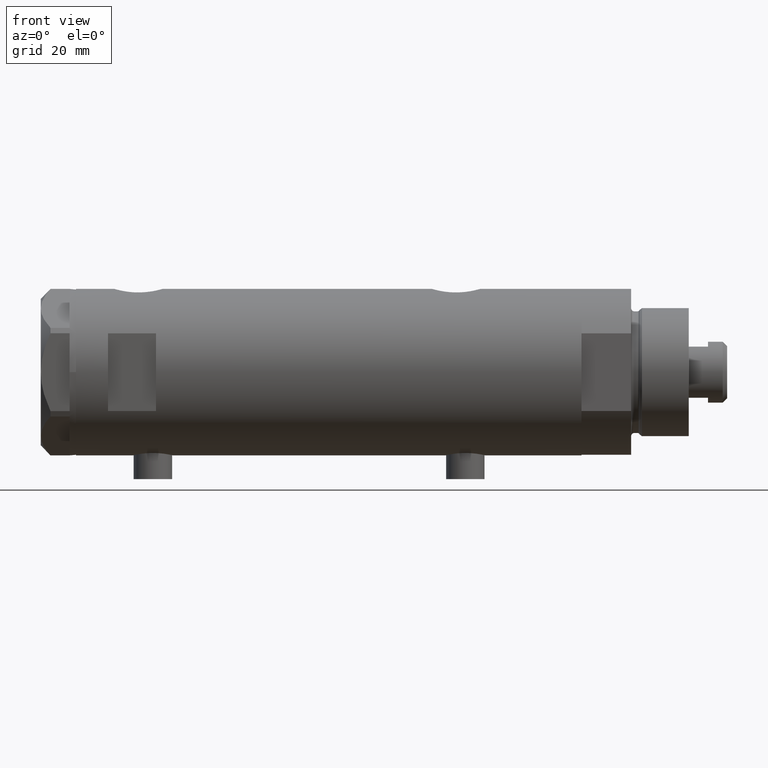
[diagram: clean part render]
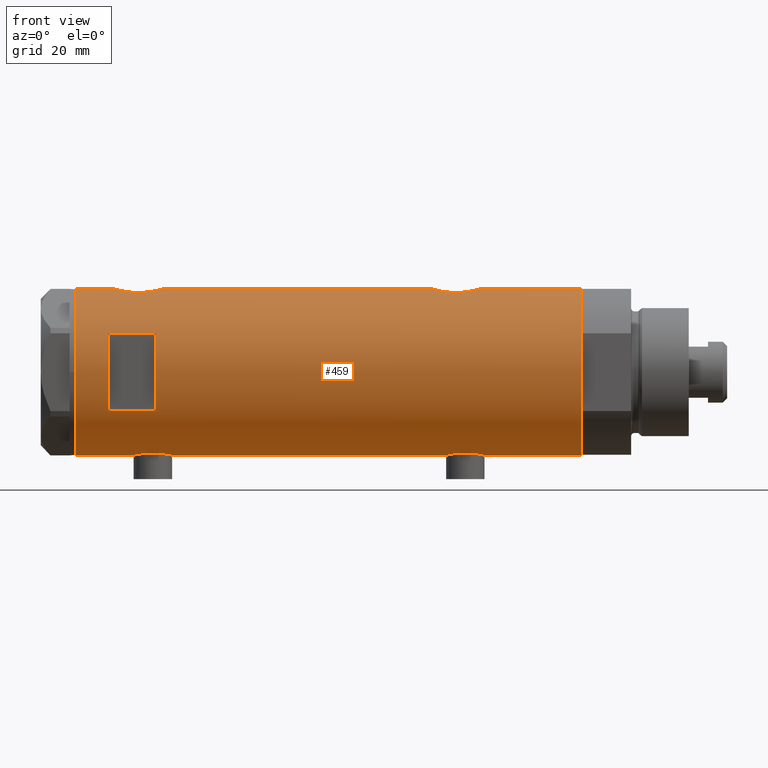
[diagram: same view with one face highlighted and labeled with its STEP entity id]
A machine part, front view. The second image highlights one B-rep face of the part: STEP entity #459.
In plain terms, the highlighted cylindrical surface (partial cylindrical patch) has radius 26 mm, axis along (-1, -0, 0).
Its self-contained STEP definition (entity closure, byte-faithful):
#2 = EDGE_CURVE ( 'NONE', #2162, #4153, #1771, .T. ) ;
#14 = CARTESIAN_POINT ( 'NONE',  ( -25.95206678899177888, -1.628763264760263230, -36.60199186669786542 ) ) ;
#28 = CARTESIAN_POINT ( 'NONE',  ( -12.12435565298214080, -23.00000000000000355, 68.95000000000003126 ) ) ;
#31 = ORIENTED_EDGE ( 'NONE', *, *, #4193, .T. ) ;
#109 = CARTESIAN_POINT ( 'NONE',  ( 25.27534302296961854, -6.097250460344744383, 63.82409613097077283 ) ) ;
#131 = CARTESIAN_POINT ( 'NONE',  ( 25.27534302296961854, -6.097250460344746159, -35.37590386902926554 ) ) ;
#152 = CARTESIAN_POINT ( 'NONE',  ( 24.96970063328116751, -7.247045583599690310, 57.50280785145197626 ) ) ;
#163 = VERTEX_POINT ( 'NONE', #2938 ) ;
#174 = CARTESIAN_POINT ( 'NONE',  ( 25.41756773306326522, -5.475260495868973898, -34.61859126343051685 ) ) ;
#185 = ORIENTED_EDGE ( 'NONE', *, *, #2, .T. ) ;
#250 = DIRECTION ( 'NONE',  ( 1.000000000000000000, 0.000000000000000000, 0.000000000000000000 ) ) ;
#273 = VECTOR ( 'NONE', #2916, 1000.000000000000000 ) ;
#283 = DIRECTION ( 'NONE',  ( 1.000000000000000000, 0.000000000000000000, 0.000000000000000000 ) ) ;
#288 = CARTESIAN_POINT ( 'NONE',  ( -25.31551596256916525, -5.928819821281963165, -44.67011491904084153 ) ) ;
#296 = AXIS2_PLACEMENT_3D ( 'NONE', #1550, #1964, #4585 ) ;
#328 = EDGE_CURVE ( 'NONE', #2162, #3417, #1556, .T. ) ;
#336 = CARTESIAN_POINT ( 'NONE',  ( -25.38662204309617465, -5.616507264474316585, -39.87800622280675356 ) ) ;
#342 = CARTESIAN_POINT ( 'NONE',  ( 25.88994451797511331, -2.432613607265599498, -46.86140968713201005 ) ) ;
#361 = CARTESIAN_POINT ( 'NONE',  ( -25.81232680456767170, -3.137210741985124507, -37.22886342778421920 ) ) ;
#368 = VECTOR ( 'NONE', #840, 1000.000000000000000 ) ;
#374 = CIRCLE ( 'NONE', #3212, 26.00000000000000355 ) ;
#390 = CARTESIAN_POINT ( 'NONE',  ( -25.99999999999998934, -0.4144764235405737907, -36.39999999999999147 ) ) ;
#415 = CARTESIAN_POINT ( 'NONE',  ( -25.24765475072630139, -6.209883762780014749, -41.83321815644903552 ) ) ;
#426 = CARTESIAN_POINT ( 'NONE',  ( 25.98599366666249111, -0.9828433289544116214, 66.90188401723474954 ) ) ;
#449 = CARTESIAN_POINT ( 'NONE',  ( 25.17510548814053450, -6.503212750695461786, 63.21761787815348299 ) ) ;
#450 = CARTESIAN_POINT ( 'NONE',  ( -25.52190669608696183, -4.968444991210422934, 51.13658907807515419 ) ) ;
#459 = ADVANCED_FACE ( 'NONE', ( #577, #2790 ), #3590, .T. ) ;
#480 = CARTESIAN_POINT ( 'NONE',  ( 12.12435565298214080, -23.00000000000000355, 53.95000000000001705 ) ) ;
#520 = CARTESIAN_POINT ( 'NONE',  ( 26.00000000000000355, 0.000000000000000000, 78.95000000000000284 ) ) ;
#549 = CARTESIAN_POINT ( 'NONE',  ( 25.01107424167500781, -7.102941973849612900, 57.02937151337422250 ) ) ;
#577 = FACE_OUTER_BOUND ( 'NONE', #1242, .T. ) ;
#579 = CARTESIAN_POINT ( 'NONE',  ( -25.74330903162726614, -3.648508829439214285, 60.02867714715799963 ) ) ;
#629 = DIRECTION ( 'NONE',  ( 0.000000000000000000, 0.000000000000000000, 1.000000000000000000 ) ) ;
#632 = CARTESIAN_POINT ( 'NONE',  ( -25.85385060263650203, -2.778671585188186910, 60.56314451304238133 ) ) ;
#645 = CARTESIAN_POINT ( 'NONE',  ( -25.57167894663061958, -4.701762988462087733, 59.07280450192418186 ) ) ;
#680 = ORIENTED_EDGE ( 'NONE', *, *, #2490, .F. ) ;
#698 = VECTOR ( 'NONE', #4334, 1000.000000000000000 ) ;
#741 = DIRECTION ( 'NONE',  ( 1.000000000000000000, 0.000000000000000000, 0.000000000000000000 ) ) ;
#757 = CARTESIAN_POINT ( 'NONE',  ( -25.71926338401909362, -3.813768894920912977, -37.69427860166183564 ) ) ;
#809 = CARTESIAN_POINT ( 'NONE',  ( -25.99036913299956453, -0.8159609457881494832, -48.86031143031891588 ) ) ;
#812 = CARTESIAN_POINT ( 'NONE',  ( 25.38109653984944103, -5.641393955635662039, 64.39819092448752258 ) ) ;
#831 = CARTESIAN_POINT ( 'NONE',  ( -25.78943824387523165, -3.306687742228911375, -47.95754138783466658 ) ) ;
#839 = CARTESIAN_POINT ( 'NONE',  ( 24.91324908721446718, -7.438459228814661373, 60.44017499374191260 ) ) ;
#840 = DIRECTION ( 'NONE',  ( 0.000000000000000000, 0.000000000000000000, 1.000000000000000000 ) ) ;
#844 = CARTESIAN_POINT ( 'NONE',  ( -26.00000000000000000, -0.4086738135806028960, 48.70000000000000995 ) ) ;
#854 = LINE ( 'NONE', #2355, #4370 ) ;
#860 = CARTESIAN_POINT ( 'NONE',  ( 26.00000000000000355, 3.343657407582877388E-16, -47.25000000000000000 ) ) ;
#864 = CARTESIAN_POINT ( 'NONE',  ( 25.31004928890824957, -5.952041021437452173, -35.18019400116495632 ) ) ;
#878 = CARTESIAN_POINT ( 'NONE',  ( 25.38125492692910967, -5.649348210287291394, 54.49305665653605502 ) ) ;
#881 = CARTESIAN_POINT ( 'NONE',  ( 25.00829008792691255, -7.115081037226466343, -37.32698996259182422 ) ) ;
#904 = CARTESIAN_POINT ( 'NONE',  ( -25.24022290516698419, -6.239518219915426656, 54.53402784061568553 ) ) ;
#909 = CARTESIAN_POINT ( 'NONE',  ( 24.89475831528845262, -7.500067228253130658, -40.24337428253534910 ) ) ;
#934 = VERTEX_POINT ( 'NONE', #4416 ) ;
#958 = CARTESIAN_POINT ( 'NONE',  ( -25.24765475072630139, -6.209883762780005867, 55.76678184355100854 ) ) ;
#1021 = EDGE_CURVE ( 'NONE', #934, #1672, #4027, .T. ) ;
#1054 = ORIENTED_EDGE ( 'NONE', *, *, #1987, .F. ) ;
#1101 = ORIENTED_EDGE ( 'NONE', *, *, #4035, .F. ) ;
#1125 = CARTESIAN_POINT ( 'NONE',  ( -25.72076778631231164, -3.815670258243487378, 49.98312189468122568 ) ) ;
#1132 = CARTESIAN_POINT ( 'NONE',  ( -25.64593536028936072, -4.278686337618966995, -38.08968397039122067 ) ) ;
#1162 = CARTESIAN_POINT ( 'NONE',  ( 25.38125492692910612, -5.649348210287294059, -44.70694334346394072 ) ) ;
#1185 = EDGE_CURVE ( 'NONE', #3476, #934, #4519, .T. ) ;
#1187 = CARTESIAN_POINT ( 'NONE',  ( -26.00000000000000355, 3.184077527325983904E-15, -48.90000000000001279 ) ) ;
#1190 = CARTESIAN_POINT ( 'NONE',  ( 25.59665538672496865, -4.580438224580679396, 65.40889127712388529 ) ) ;
#1206 = LINE ( 'NONE', #3147, #3916 ) ;
#1233 = CARTESIAN_POINT ( 'NONE',  ( 24.89475831528844907, -7.500067228253130658, 58.95662571746464664 ) ) ;
#1242 = EDGE_LOOP ( 'NONE', ( #3670, #2153, #4104, #1623, #31, #1818, #185, #680, #3174, #2048, #4217, #1925 ) ) ;
#1252 = CARTESIAN_POINT ( 'NONE',  ( 25.59500516383205948, -4.575229401795795958, 53.50212244934583339 ) ) ;
#1253 = CARTESIAN_POINT ( 'NONE',  ( -25.92425332714050867, -2.018894156999440526, 49.02103879324670288 ) ) ;
#1255 = CARTESIAN_POINT ( 'NONE',  ( 25.38109653984943748, -5.641393955635659374, -34.80180907551250158 ) ) ;
#1270 = CARTESIAN_POINT ( 'NONE',  ( -25.52190669608696183, -4.968444991210430040, -46.46341092192485434 ) ) ;
#1278 = CARTESIAN_POINT ( 'NONE',  ( 24.89854802586676286, -7.487520416261737921, -39.25184316422095065 ) ) ;
#1283 = CARTESIAN_POINT ( 'NONE',  ( 26.00000000000000355, -3.975028449552882818E-20, 66.95000000000000284 ) ) ;
#1307 = CARTESIAN_POINT ( 'NONE',  ( -25.59645788645698872, -4.565358797148513226, 59.22330529203479443 ) ) ;
#1316 = VERTEX_POINT ( 'NONE', #2191 ) ;
#1334 = CARTESIAN_POINT ( 'NONE',  ( 0.000000000000000000, 0.000000000000000000, -78.95000000000000284 ) ) ;
#1383 = CARTESIAN_POINT ( 'NONE',  ( -25.92364458890658696, -2.026637113504536458, 60.87630990691475574 ) ) ;
#1442 = CARTESIAN_POINT ( 'NONE',  ( -12.12435565298214080, -23.00000000000000355, 53.95000000000001705 ) ) ;
#1470 = CARTESIAN_POINT ( 'NONE',  ( -25.92364458890659762, -2.026637113504532017, -36.72369009308525278 ) ) ;
#1477 = CARTESIAN_POINT ( 'NONE',  ( 25.62983961939740141, -4.376509667782454649, -45.84558499042960733 ) ) ;
#1499 = CARTESIAN_POINT ( 'NONE',  ( -25.87202607293666645, -2.583404329177992675, 49.25526333145489133 ) ) ;
#1523 = CARTESIAN_POINT ( 'NONE',  ( 25.72912156655465665, -3.765948295762491238, -46.25442975399223400 ) ) ;
#1525 = CARTESIAN_POINT ( 'NONE',  ( -26.00000000000000355, 3.184081677783118585E-15, 78.95000000000000284 ) ) ;
#1548 = CARTESIAN_POINT ( 'NONE',  ( 25.30930190055640239, -5.959775463244125326, -44.32974043478029103 ) ) ;
#1550 = CARTESIAN_POINT ( 'NONE',  ( 0.000000000000000000, 0.000000000000000000, 53.95000000000012363 ) ) ;
#1551 = CARTESIAN_POINT ( 'NONE',  ( 25.93085545515512536, -1.956676574435512794, 66.70727036830264467 ) ) ;
#1556 = B_SPLINE_CURVE_WITH_KNOTS ( 'NONE', 3,
 ( #3805, #4206, #426, #1551, #1914, #3066, #4564, #1190, #2687, #4185, #812, #2310, #109, #449, #1587, #1942, #3103, #1570, #839, #2338, #4611, #1233, #2736, #4231, #152, #549, #3505, #2415, #1659, #1640, #878, #2811, #2760, #1252, #4661, #1615, #3155, #3180, #4308, #4255, #4683, #3922 ),
 .UNSPECIFIED., .F., .F.,
 ( 4, 2, 2, 2, 2, 2, 2, 2, 2, 2, 2, 2, 2, 2, 2, 2, 2, 2, 2, 2, 4 ),
 ( 0.02357432247332888128, 0.02504731828495720264, 0.02652031409658552746, 0.02799330990821384882, 0.02946630571984217017, 0.03020280362565634646, 0.03093930153147052275, 0.03241229734309883370, 0.03388529315472715159, 0.03462179106054130706, 0.03535828896635546947, 0.03683128477798380818, 0.03756778268379798447, 0.03830428058961215382, 0.03977727640124052721, 0.04125027221286890755, 0.04198677011868309772, 0.04272326802449730176, 0.04419626383612570292, 0.04566925964775411101, 0.04714225545938251910 ),
 .UNSPECIFIED. ) ;
#1559 = CIRCLE ( 'NONE', #4225, 26.00000000000000355 ) ;
#1570 = CARTESIAN_POINT ( 'NONE',  ( 24.92415241886516242, -7.401968919186685092, 60.68323537444815940 ) ) ;
#1587 = CARTESIAN_POINT ( 'NONE',  ( 25.11342038069227200, -6.734617143597204425, 62.78770695790495893 ) ) ;
#1591 = CARTESIAN_POINT ( 'NONE',  ( 24.91324908721445652, -7.438459228814655155, -38.75982500625809024 ) ) ;
#1599 = VECTOR ( 'NONE', #2093, 1000.000000000000000 ) ;
#1615 = CARTESIAN_POINT ( 'NONE',  ( 25.72912156655465310, -3.765948295762495235, 52.94557024600777595 ) ) ;
#1616 = ORIENTED_EDGE ( 'NONE', *, *, #4063, .F. ) ;
#1623 = ORIENTED_EDGE ( 'NONE', *, *, #3345, .F. ) ;
#1638 = CARTESIAN_POINT ( 'NONE',  ( -26.00000000000000355, 3.184077527313362130E-15, 48.70000000000000995 ) ) ;
#1640 = CARTESIAN_POINT ( 'NONE',  ( 25.30930190055639883, -5.959775463244125326, 54.87025956521971892 ) ) ;
#1658 = LINE ( 'NONE', #4681, #698 ) ;
#1659 = CARTESIAN_POINT ( 'NONE',  ( 25.17393786935995692, -6.507882790539421869, 55.68962666655968974 ) ) ;
#1664 = CARTESIAN_POINT ( 'NONE',  ( 0.000000000000000000, 0.000000000000000000, 78.95000000000000284 ) ) ;
#1672 = VERTEX_POINT ( 'NONE', #2557 ) ;
#1683 = CARTESIAN_POINT ( 'NONE',  ( -25.28680988956730857, -6.048472998962280300, 53.32372305811759361 ) ) ;
#1708 = CARTESIAN_POINT ( 'NONE',  ( -25.25769689814630325, -6.168504065326071206, 53.92353364703255636 ) ) ;
#1721 = DIRECTION ( 'NONE',  ( 0.000000000000000000, 0.000000000000000000, 1.000000000000000000 ) ) ;
#1733 = CARTESIAN_POINT ( 'NONE',  ( -25.95206678899177888, -1.628763264760260565, 60.99800813330215732 ) ) ;
#1737 = LINE ( 'NONE', #3281, #4543 ) ;
#1754 = CARTESIAN_POINT ( 'NONE',  ( -25.67063510297210271, -4.128418051804841227, 59.64682575271267240 ) ) ;
#1758 = EDGE_CURVE ( 'NONE', #3444, #1801, #3672, .T. ) ;
#1771 = LINE ( 'NONE', #3973, #1599 ) ;
#1801 = VERTEX_POINT ( 'NONE', #2119 ) ;
#1818 = ORIENTED_EDGE ( 'NONE', *, *, #328, .F. ) ;
#1821 = DIRECTION ( 'NONE',  ( 0.000000000000000000, 0.000000000000000000, 1.000000000000000000 ) ) ;
#1824 = CARTESIAN_POINT ( 'NONE',  ( -25.49846181844014126, -5.083495422175134060, -39.00822496617402635 ) ) ;
#1884 = CARTESIAN_POINT ( 'NONE',  ( -26.00000000000000355, -6.335391871414786776E-16, -36.39999999999999858 ) ) ;
#1905 = CARTESIAN_POINT ( 'NONE',  ( -25.42883439573801141, -5.424786127492342125, -39.51918542739093709 ) ) ;
#1914 = CARTESIAN_POINT ( 'NONE',  ( 25.89059789403177092, -2.425642437452263156, 66.56377447242300605 ) ) ;
#1925 = ORIENTED_EDGE ( 'NONE', *, *, #1021, .F. ) ;
#1938 = CARTESIAN_POINT ( 'NONE',  ( 25.52449676677459678, -4.953491517965876945, -45.38674491334075611 ) ) ;
#1942 = CARTESIAN_POINT ( 'NONE',  ( 25.00829008792692321, -7.115081037226465455, 61.87301003740819993 ) ) ;
#1964 = DIRECTION ( 'NONE',  ( -0.000000000000000000, -4.625929269271486900E-15, 1.000000000000000000 ) ) ;
#1968 = CARTESIAN_POINT ( 'NONE',  ( 25.72873412774685775, -3.768477344985552424, -33.24712539855536164 ) ) ;
#1976 = CARTESIAN_POINT ( 'NONE',  ( -25.85288666140180780, -2.767917424206675747, 49.34257790010328648 ) ) ;
#1981 = CARTESIAN_POINT ( 'NONE',  ( -25.95218276861526618, -1.627663810194429406, 48.90149019612395165 ) ) ;
#1983 = CARTESIAN_POINT ( 'NONE',  ( 24.96672817551788270, -7.257586026187393458, -37.79615800278702409 ) ) ;
#1987 = EDGE_CURVE ( 'NONE', #3310, #4152, #3332, .T. ) ;
#2009 = CARTESIAN_POINT ( 'NONE',  ( 25.93085545515512891, -1.956676574435509686, -32.49272963169732265 ) ) ;
#2026 = DIRECTION ( 'NONE',  ( 0.000000000000000000, 0.000000000000000000, 1.000000000000000000 ) ) ;
#2048 = ORIENTED_EDGE ( 'NONE', *, *, #1758, .F. ) ;
#2058 = CARTESIAN_POINT ( 'NONE',  ( 25.98599366666249466, -0.9828433289544072915, -32.29811598276526752 ) ) ;
#2066 = CARTESIAN_POINT ( 'NONE',  ( -25.72076778631231164, -3.815670258243489599, -47.61687810531881127 ) ) ;
#2093 = DIRECTION ( 'NONE',  ( 0.000000000000000000, 0.000000000000000000, 1.000000000000000000 ) ) ;
#2119 = CARTESIAN_POINT ( 'NONE',  ( -26.00000000000000355, -2.813058302341337106E-16, 61.20000000000000284 ) ) ;
#2122 = EDGE_CURVE ( 'NONE', #3825, #4752, #854, .T. ) ;
#2153 = ORIENTED_EDGE ( 'NONE', *, *, #4786, .T. ) ;
#2162 = VERTEX_POINT ( 'NONE', #1283 ) ;
#2191 = CARTESIAN_POINT ( 'NONE',  ( 26.00000000000000355, -3.975025925197986111E-20, -32.25000000000000000 ) ) ;
#2258 = CARTESIAN_POINT ( 'NONE',  ( -25.74330903162725903, -3.648508829439220946, -37.57132285284201600 ) ) ;
#2265 = CARTESIAN_POINT ( 'NONE',  ( -25.85288666140181491, -2.767917424206677079, -48.25742209989675047 ) ) ;
#2282 = CARTESIAN_POINT ( 'NONE',  ( -25.28680988956730147, -6.048472998962283853, -44.27627694188245755 ) ) ;
#2308 = CARTESIAN_POINT ( 'NONE',  ( -25.87202607293666645, -2.583404329177997116, -48.34473666854512430 ) ) ;
#2310 = CARTESIAN_POINT ( 'NONE',  ( 25.31004928890826378, -5.952041021437455726, 64.01980599883506784 ) ) ;
#2338 = CARTESIAN_POINT ( 'NONE',  ( 24.89854802586675930, -7.487520416261737033, 59.94815683577904508 ) ) ;
#2355 = CARTESIAN_POINT ( 'NONE',  ( -12.12435565298214080, -23.00000000000000355, -78.95000000000000284 ) ) ;
#2360 = B_SPLINE_CURVE_WITH_KNOTS ( 'NONE', 3,
 ( #4235, #2444, #2058, #2009, #3508, #3970, #1968, #3492, #3541, #174, #1255, #864, #131, #4280, #3187, #881, #1983, #4663, #1591, #1278, #4641, #909, #4688, #3585, #2418, #2816, #4313, #3948, #2538, #1548, #1162, #3033, #1938, #3802, #1477, #1523, #4165, #342, #2993, #2705, #4273, #3100 ),
 .UNSPECIFIED., .F., .F.,
 ( 4, 2, 2, 2, 2, 2, 2, 2, 2, 2, 2, 2, 2, 2, 2, 2, 2, 2, 2, 2, 4 ),
 ( 0.02357432247332888128, 0.02504731828495719570, 0.02652031409658551359, 0.02799330990821382800, 0.02946630571984214589, 0.03020280362565630136, 0.03093930153147046030, 0.03241229734309879207, 0.03388529315472712383, 0.03462179106054129318, 0.03535828896635545560, 0.03683128477798380818, 0.03756778268379799834, 0.03830428058961218157, 0.03977727640124056885, 0.04125027221286896306, 0.04198677011868315323, 0.04272326802449734340, 0.04419626383612573067, 0.04566925964775411795, 0.04714225545938250522 ),
 .UNSPECIFIED. ) ;
#2387 = CARTESIAN_POINT ( 'NONE',  ( -25.38662204309617110, -5.616507264474310368, 57.72199377719326208 ) ) ;
#2406 = AXIS2_PLACEMENT_3D ( 'NONE', #1334, #4361, #250 ) ;
#2415 = CARTESIAN_POINT ( 'NONE',  ( 25.11243836838845667, -6.738202653785824836, 56.12043350844841427 ) ) ;
#2416 = CARTESIAN_POINT ( 'NONE',  ( -25.23763877699556701, -6.249927116972441965, 54.74164472334533116 ) ) ;
#2418 = CARTESIAN_POINT ( 'NONE',  ( 24.96970063328116751, -7.247045583599693863, -41.69719214854801237 ) ) ;
#2444 = CARTESIAN_POINT ( 'NONE',  ( 26.00000000000001066, -0.4910237949823163528, -32.25000000000000711 ) ) ;
#2490 = EDGE_CURVE ( 'NONE', #4012, #4153, #4777, .T. ) ;
#2520 = CARTESIAN_POINT ( 'NONE',  ( -26.00000000000000355, -2.813058302341337106E-16, 61.20000000000000284 ) ) ;
#2528 = DIRECTION ( 'NONE',  ( 0.000000000000000000, 0.000000000000000000, 1.000000000000000000 ) ) ;
#2529 = CARTESIAN_POINT ( 'NONE',  ( -26.00000000000000355, 3.184077527313362130E-15, 48.70000000000000995 ) ) ;
#2538 = CARTESIAN_POINT ( 'NONE',  ( 25.17393786935995692, -6.507882790539420981, -43.51037333344031310 ) ) ;
#2557 = CARTESIAN_POINT ( 'NONE',  ( -26.00000000000000355, -6.335391871414786776E-16, -36.39999999999999858 ) ) ;
#2589 = CARTESIAN_POINT ( 'NONE',  ( -25.23763877699558122, -6.249927116972450847, -42.85835527665468447 ) ) ;
#2621 = CARTESIAN_POINT ( 'NONE',  ( 0.000000000000000000, 0.000000000000000000, 68.95000000000003126 ) ) ;
#2631 = CARTESIAN_POINT ( 'NONE',  ( -25.67063510297210271, -4.128418051804850997, -37.95317424728735034 ) ) ;
#2640 = CARTESIAN_POINT ( 'NONE',  ( -26.00000000000000355, 3.184081677783118585E-15, -78.95000000000000284 ) ) ;
#2680 = CARTESIAN_POINT ( 'NONE',  ( -25.25769689814629615, -6.168504065326074759, -43.67646635296746638 ) ) ;
#2683 = CARTESIAN_POINT ( 'NONE',  ( -26.00000000000000000, -0.4086738135806058381, -48.90000000000002700 ) ) ;
#2687 = CARTESIAN_POINT ( 'NONE',  ( 25.52567976009757089, -4.956266804246109103, 65.10019927459094902 ) ) ;
#2705 = CARTESIAN_POINT ( 'NONE',  ( 25.98569226047905190, -0.9886551788957271825, -47.20082376600176133 ) ) ;
#2709 = CARTESIAN_POINT ( 'NONE',  ( -26.00000000000000355, 3.184081677783118585E-15, -78.95000000000000284 ) ) ;
#2734 = CARTESIAN_POINT ( 'NONE',  ( 12.12435565298214080, -23.00000000000000355, 68.95000000000003126 ) ) ;
#2736 = CARTESIAN_POINT ( 'NONE',  ( 24.90947356773250121, -7.451722770779340976, 58.46809158171851095 ) ) ;
#2760 = CARTESIAN_POINT ( 'NONE',  ( 25.52449676677458612, -4.953491517965881386, 53.81325508665923962 ) ) ;
#2790 = FACE_BOUND ( 'NONE', #3925, .T. ) ;
#2804 = CARTESIAN_POINT ( 'NONE',  ( -25.42977453177914882, -5.420307583276860797, -45.78812271793364630 ) ) ;
#2811 = CARTESIAN_POINT ( 'NONE',  ( 25.48871066912673200, -5.133852125086510121, 53.97709693256022234 ) ) ;
#2816 = CARTESIAN_POINT ( 'NONE',  ( 25.01107424167501136, -7.102941973849614676, -42.17062848662576613 ) ) ;
#2823 = CARTESIAN_POINT ( 'NONE',  ( -25.99999999999998934, -0.4144764235405755670, 61.19999999999998153 ) ) ;
#2835 = CARTESIAN_POINT ( 'NONE',  ( -25.57228991600092272, -4.705691472451704271, -46.78339690124655448 ) ) ;
#2841 = CARTESIAN_POINT ( 'NONE',  ( -25.31551596256916525, -5.928819821281959612, 52.92988508095918831 ) ) ;
#2907 = CARTESIAN_POINT ( 'NONE',  ( 12.12435565298214080, -23.00000000000000355, -78.95000000000000284 ) ) ;
#2910 = CARTESIAN_POINT ( 'NONE',  ( -26.00000000000000355, 3.184081677783118585E-15, -78.95000000000000284 ) ) ;
#2916 = DIRECTION ( 'NONE',  ( 0.000000000000000000, 0.000000000000000000, 1.000000000000000000 ) ) ;
#2938 = CARTESIAN_POINT ( 'NONE',  ( 26.00000000000000355, 0.000000000000000000, -78.95000000000000284 ) ) ;
#2987 = CARTESIAN_POINT ( 'NONE',  ( -25.59645788645699227, -4.565358797148523884, -38.37669470796522120 ) ) ;
#2993 = CARTESIAN_POINT ( 'NONE',  ( 25.93098857934040424, -1.953835360821274847, -47.00773664702559529 ) ) ;
#3010 = CARTESIAN_POINT ( 'NONE',  ( -25.95218276861526263, -1.627663810194436067, -48.69850980387603556 ) ) ;
#3027 = ORIENTED_EDGE ( 'NONE', *, *, #2122, .F. ) ;
#3033 = CARTESIAN_POINT ( 'NONE',  ( 25.48871066912673200, -5.133852125086511009, -45.22290306743978050 ) ) ;
#3066 = CARTESIAN_POINT ( 'NONE',  ( 25.78993643992928497, -3.329561377902408914, 66.18821560278735205 ) ) ;
#3078 = CARTESIAN_POINT ( 'NONE',  ( -25.28632996747171902, -6.050474653715423479, -41.03088129158464881 ) ) ;
#3090 = EDGE_CURVE ( 'NONE', #1672, #3444, #4257, .T. ) ;
#3100 = CARTESIAN_POINT ( 'NONE',  ( 26.00000000000000355, 3.343657407582877388E-16, -47.25000000000000000 ) ) ;
#3103 = CARTESIAN_POINT ( 'NONE',  ( 24.96672817551787560, -7.257586026187392569, 61.40384199721296454 ) ) ;
#3147 = CARTESIAN_POINT ( 'NONE',  ( -26.00000000000000355, 3.184081677783118585E-15, -78.95000000000000284 ) ) ;
#3148 = CARTESIAN_POINT ( 'NONE',  ( -25.67167563980648382, -4.129238867693854509, -47.35934056431105432 ) ) ;
#3150 = EDGE_CURVE ( 'NONE', #1801, #4012, #1206, .T. ) ;
#3155 = CARTESIAN_POINT ( 'NONE',  ( 25.78902964777116580, -3.336582972512951883, 52.71524159542262566 ) ) ;
#3174 = ORIENTED_EDGE ( 'NONE', *, *, #3150, .F. ) ;
#3180 = CARTESIAN_POINT ( 'NONE',  ( 25.88994451797512397, -2.432613607265602162, 52.33859031286799279 ) ) ;
#3181 = CARTESIAN_POINT ( 'NONE',  ( -25.49846181844015192, -5.083495422175122513, 58.59177503382597507 ) ) ;
#3187 = CARTESIAN_POINT ( 'NONE',  ( 25.11342038069227200, -6.734617143597207978, -36.41229304209507234 ) ) ;
#3212 = AXIS2_PLACEMENT_3D ( 'NONE', #2621, #4121, #741 ) ;
#3215 = DIRECTION ( 'NONE',  ( 1.000000000000000000, 0.000000000000000000, 0.000000000000000000 ) ) ;
#3237 = CARTESIAN_POINT ( 'NONE',  ( -25.28632996747171902, -6.050474653715411932, 56.56911870841537393 ) ) ;
#3245 = CARTESIAN_POINT ( 'NONE',  ( -25.71926338401908652, -3.813768894920905872, 59.90572139833817289 ) ) ;
#3250 = CARTESIAN_POINT ( 'NONE',  ( -25.78943824387524231, -3.306687742228910487, 49.64245861216535616 ) ) ;
#3281 = CARTESIAN_POINT ( 'NONE',  ( 26.00000000000000355, 0.000000000000000000, -78.95000000000000284 ) ) ;
#3310 = VERTEX_POINT ( 'NONE', #480 ) ;
#3332 = LINE ( 'NONE', #2907, #4851 ) ;
#3342 = CARTESIAN_POINT ( 'NONE',  ( -25.57228991600092627, -4.705691472451699831, 50.81660309875346826 ) ) ;
#3345 = EDGE_CURVE ( 'NONE', #1316, #3441, #2360, .T. ) ;
#3354 = CARTESIAN_POINT ( 'NONE',  ( -25.85385060263651269, -2.778671585188184689, -37.03685548695762009 ) ) ;
#3417 = VERTEX_POINT ( 'NONE', #4306 ) ;
#3428 = CARTESIAN_POINT ( 'NONE',  ( -25.57167894663063024, -4.701762988462101944, -38.52719549807584798 ) ) ;
#3441 = VERTEX_POINT ( 'NONE', #860 ) ;
#3444 = VERTEX_POINT ( 'NONE', #1638 ) ;
#3476 = VERTEX_POINT ( 'NONE', #2910 ) ;
#3492 = CARTESIAN_POINT ( 'NONE',  ( 25.59665538672496155, -4.580438224580676732, -33.79110872287610334 ) ) ;
#3505 = CARTESIAN_POINT ( 'NONE',  ( 25.03461301890608581, -7.019803056070502478, 56.79816816893102782 ) ) ;
#3508 = CARTESIAN_POINT ( 'NONE',  ( 25.89059789403177447, -2.425642437452257383, -32.63622552757698969 ) ) ;
#3541 = CARTESIAN_POINT ( 'NONE',  ( 25.52567976009756379, -4.956266804246105551, -34.09980072540906093 ) ) ;
#3581 = CARTESIAN_POINT ( 'NONE',  ( -25.42977453177915947, -5.420307583276853691, 51.81187728206638354 ) ) ;
#3585 = CARTESIAN_POINT ( 'NONE',  ( 24.95200646071794282, -7.307522494171283967, -41.45607564187277205 ) ) ;
#3590 = CYLINDRICAL_SURFACE ( 'NONE', #2406, 26.00000000000000355 ) ;
#3592 = CARTESIAN_POINT ( 'NONE',  ( -25.99009752186832500, -0.8230863847107482423, 61.15917071406682481 ) ) ;
#3614 = CARTESIAN_POINT ( 'NONE',  ( -25.38744165544137132, -5.612847683295914436, 52.17012416761526339 ) ) ;
#3670 = ORIENTED_EDGE ( 'NONE', *, *, #1185, .F. ) ;
#3672 = B_SPLINE_CURVE_WITH_KNOTS ( 'NONE', 3,
 ( #2529, #844, #3826, #1981, #1253, #1499, #1976, #4298, #3250, #1125, #4238, #3342, #450, #3581, #3614, #2841, #1683, #1708, #4712, #904, #2416, #4256, #958, #3237, #4358, #2387, #3893, #3181, #4023, #645, #1307, #4030, #1754, #3245, #579, #4744, #632, #1383, #1733, #3592, #2823, #2520 ),
 .UNSPECIFIED., .F., .F.,
 ( 4, 2, 2, 2, 2, 2, 2, 2, 2, 2, 2, 2, 2, 2, 2, 2, 2, 2, 2, 2, 4 ),
 ( 0.01961238453869442941, 0.02083783025472767114, 0.02206327597076090941, 0.02267599882877753201, 0.02328872168679415461, 0.02451416740282739287, 0.02573961311886063114, 0.02696505883489386940, 0.02819050455092710766, 0.02880322740894371986, 0.02941595026696032858, 0.03064139598299354950, 0.03186684169902676694, 0.03309228741505998439, 0.03370501027307658271, 0.03431773313109318796, 0.03493045598910978627, 0.03554317884712639153, 0.03676862456315960898, 0.03799407027919282642, 0.03921951599522604387 ),
 .UNSPECIFIED. ) ;
#3716 = EDGE_CURVE ( 'NONE', #163, #3441, #1737, .T. ) ;
#3781 = CARTESIAN_POINT ( 'NONE',  ( -25.99009752186832856, -0.8230863847107483533, -36.44082928593318371 ) ) ;
#3802 = CARTESIAN_POINT ( 'NONE',  ( 25.59500516383205593, -4.575229401795787965, -45.69787755065420498 ) ) ;
#3805 = CARTESIAN_POINT ( 'NONE',  ( 26.00000000000000355, -3.975028449552882818E-20, 66.95000000000000284 ) ) ;
#3818 = CARTESIAN_POINT ( 'NONE',  ( -25.81160981652327280, -3.129523010631800606, -48.06392973722076079 ) ) ;
#3825 = VERTEX_POINT ( 'NONE', #28 ) ;
#3826 = CARTESIAN_POINT ( 'NONE',  ( -25.99036913299955742, -0.8159609457881432659, 48.73968856968109264 ) ) ;
#3841 = CIRCLE ( 'NONE', #296, 26.00000000000000355 ) ;
#3893 = CARTESIAN_POINT ( 'NONE',  ( -25.42883439573800430, -5.424786127492328802, 58.08081457260910696 ) ) ;
#3916 = VECTOR ( 'NONE', #2026, 1000.000000000000000 ) ;
#3922 = CARTESIAN_POINT ( 'NONE',  ( 26.00000000000000355, -7.221007372182803218E-17, 51.95000000000000284 ) ) ;
#3925 = EDGE_LOOP ( 'NONE', ( #1101, #3027, #1616, #1054 ) ) ;
#3948 = CARTESIAN_POINT ( 'NONE',  ( 25.11243836838845667, -6.738202653785825724, -43.07956649155158146 ) ) ;
#3970 = CARTESIAN_POINT ( 'NONE',  ( 25.78993643992928853, -3.329561377902402697, -33.01178439721263658 ) ) ;
#3973 = CARTESIAN_POINT ( 'NONE',  ( 26.00000000000000355, 0.000000000000000000, -78.95000000000000284 ) ) ;
#4012 = VERTEX_POINT ( 'NONE', #1525 ) ;
#4023 = CARTESIAN_POINT ( 'NONE',  ( -25.52274351135605102, -4.960534548086199536, 58.75751745340734544 ) ) ;
#4027 = B_SPLINE_CURVE_WITH_KNOTS ( 'NONE', 3,
 ( #1187, #2683, #809, #3010, #4510, #2308, #2265, #3818, #831, #2066, #3148, #2835, #1270, #2804, #4301, #288, #2282, #2680, #4489, #4091, #2589, #4132, #415, #3078, #4578, #336, #1905, #1824, #4115, #3428, #2987, #1132, #2631, #757, #2258, #361, #3354, #1470, #14, #3781, #390, #1884 ),
 .UNSPECIFIED., .F., .F.,
 ( 4, 2, 2, 2, 2, 2, 2, 2, 2, 2, 2, 2, 2, 2, 2, 2, 2, 2, 2, 2, 4 ),
 ( 0.01961238453869445370, 0.02083783025472768849, 0.02206327597076092328, 0.02267599882877753895, 0.02328872168679415461, 0.02451416740282739287, 0.02573961311886063114, 0.02696505883489386593, 0.02819050455092710072, 0.02880322740894371292, 0.02941595026696031817, 0.03064139598299353562, 0.03186684169902675307, 0.03309228741505997051, 0.03370501027307658271, 0.03431773313109318796, 0.03493045598910979321, 0.03554317884712640541, 0.03676862456315962979, 0.03799407027919286112, 0.03921951599522608550 ),
 .UNSPECIFIED. ) ;
#4030 = CARTESIAN_POINT ( 'NONE',  ( -25.64593536028936782, -4.278686337618957225, 59.51031602960879496 ) ) ;
#4035 = EDGE_CURVE ( 'NONE', #4752, #3310, #3841, .T. ) ;
#4063 = EDGE_CURVE ( 'NONE', #4152, #3825, #374, .T. ) ;
#4087 = CARTESIAN_POINT ( 'NONE',  ( 0.000000000000000000, 0.000000000000000000, -78.95000000000000284 ) ) ;
#4091 = CARTESIAN_POINT ( 'NONE',  ( -25.24022290516699485, -6.239518219915436426, -43.06597215938434431 ) ) ;
#4104 = ORIENTED_EDGE ( 'NONE', *, *, #3716, .T. ) ;
#4115 = CARTESIAN_POINT ( 'NONE',  ( -25.52274351135604391, -4.960534548086211970, -38.84248254659267729 ) ) ;
#4121 = DIRECTION ( 'NONE',  ( -0.000000000000000000, 0.000000000000000000, -1.000000000000000000 ) ) ;
#4132 = CARTESIAN_POINT ( 'NONE',  ( -25.23758491649667235, -6.250144606721711682, -42.23988300428196396 ) ) ;
#4137 = AXIS2_PLACEMENT_3D ( 'NONE', #1664, #629, #3215 ) ;
#4152 = VERTEX_POINT ( 'NONE', #2734 ) ;
#4153 = VERTEX_POINT ( 'NONE', #520 ) ;
#4165 = CARTESIAN_POINT ( 'NONE',  ( 25.78902964777116935, -3.336582972512946554, -46.48475840457737007 ) ) ;
#4185 = CARTESIAN_POINT ( 'NONE',  ( 25.41756773306325456, -5.475260495868974786, 64.58140873656947178 ) ) ;
#4193 = EDGE_CURVE ( 'NONE', #1316, #3417, #1658, .T. ) ;
#4206 = CARTESIAN_POINT ( 'NONE',  ( 26.00000000000000355, -0.4910237949823177406, 66.94999999999998863 ) ) ;
#4217 = ORIENTED_EDGE ( 'NONE', *, *, #3090, .F. ) ;
#4225 = AXIS2_PLACEMENT_3D ( 'NONE', #4087, #1821, #283 ) ;
#4231 = CARTESIAN_POINT ( 'NONE',  ( 24.95200646071793926, -7.307522494171281302, 57.74392435812723079 ) ) ;
#4235 = CARTESIAN_POINT ( 'NONE',  ( 26.00000000000000355, -3.975025925197986111E-20, -32.25000000000000000 ) ) ;
#4238 = CARTESIAN_POINT ( 'NONE',  ( -25.67167563980648382, -4.129238867693851844, 50.24065943568894710 ) ) ;
#4255 = CARTESIAN_POINT ( 'NONE',  ( 25.98569226047905545, -0.9886551788957260722, 51.99917623399824151 ) ) ;
#4256 = CARTESIAN_POINT ( 'NONE',  ( -25.23758491649666169, -6.250144606721704577, 55.36011699571807299 ) ) ;
#4257 = LINE ( 'NONE', #2709, #368 ) ;
#4273 = CARTESIAN_POINT ( 'NONE',  ( 25.99999999999999645, -0.4982617809740603199, -47.24999999999999289 ) ) ;
#4280 = CARTESIAN_POINT ( 'NONE',  ( 25.17510548814053095, -6.503212750695464450, -35.98238212184651275 ) ) ;
#4298 = CARTESIAN_POINT ( 'NONE',  ( -25.81160981652327280, -3.129523010631799718, 49.53607026277927616 ) ) ;
#4301 = CARTESIAN_POINT ( 'NONE',  ( -25.38744165544136777, -5.612847683295916212, -45.42987583238478067 ) ) ;
#4306 = CARTESIAN_POINT ( 'NONE',  ( 26.00000000000000355, -7.221007372182803218E-17, 51.95000000000000284 ) ) ;
#4308 = CARTESIAN_POINT ( 'NONE',  ( 25.93098857934041135, -1.953835360821271960, 52.19226335297440755 ) ) ;
#4313 = CARTESIAN_POINT ( 'NONE',  ( 25.03461301890608581, -7.019803056070506031, -42.40183183106896792 ) ) ;
#4334 = DIRECTION ( 'NONE',  ( 0.000000000000000000, 0.000000000000000000, 1.000000000000000000 ) ) ;
#4358 = CARTESIAN_POINT ( 'NONE',  ( -25.31538696791480447, -5.929326713517952818, 56.96796632208098998 ) ) ;
#4361 = DIRECTION ( 'NONE',  ( 0.000000000000000000, 0.000000000000000000, 1.000000000000000000 ) ) ;
#4370 = VECTOR ( 'NONE', #4525, 1000.000000000000000 ) ;
#4416 = CARTESIAN_POINT ( 'NONE',  ( -26.00000000000000355, 3.184077527325983904E-15, -48.90000000000001279 ) ) ;
#4489 = CARTESIAN_POINT ( 'NONE',  ( -25.25025691038241860, -6.198787452305317025, -43.47441165395796503 ) ) ;
#4510 = CARTESIAN_POINT ( 'NONE',  ( -25.92425332714050867, -2.018894156999445411, -48.57896120675330565 ) ) ;
#4519 = LINE ( 'NONE', #2640, #273 ) ;
#4525 = DIRECTION ( 'NONE',  ( -0.000000000000000000, -0.000000000000000000, -1.000000000000000000 ) ) ;
#4543 = VECTOR ( 'NONE', #1721, 1000.000000000000000 ) ;
#4564 = CARTESIAN_POINT ( 'NONE',  ( 25.72873412774686486, -3.768477344985556421, 65.95287460144461988 ) ) ;
#4578 = CARTESIAN_POINT ( 'NONE',  ( -25.31538696791481868, -5.929326713517960812, -40.63203367791900433 ) ) ;
#4585 = DIRECTION ( 'NONE',  ( 1.776356839400250465E-15, 1.000000000000000000, 4.536969091016264466E-15 ) ) ;
#4611 = CARTESIAN_POINT ( 'NONE',  ( 24.89478872726946079, -7.499966281647701294, 59.69821850634782123 ) ) ;
#4641 = CARTESIAN_POINT ( 'NONE',  ( 24.89478872726946079, -7.499966281647702182, -39.50178149365218871 ) ) ;
#4661 = CARTESIAN_POINT ( 'NONE',  ( 25.62983961939740496, -4.376509667782458202, 53.35441500957042393 ) ) ;
#4663 = CARTESIAN_POINT ( 'NONE',  ( 24.92415241886515176, -7.401968919186680651, -38.51676462555185054 ) ) ;
#4681 = CARTESIAN_POINT ( 'NONE',  ( 26.00000000000000355, 0.000000000000000000, -78.95000000000000284 ) ) ;
#4683 = CARTESIAN_POINT ( 'NONE',  ( 26.00000000000001066, -0.4982617809740563231, 51.95000000000000995 ) ) ;
#4688 = CARTESIAN_POINT ( 'NONE',  ( 24.90947356773249766, -7.451722770779341865, -40.73190841828151321 ) ) ;
#4712 = CARTESIAN_POINT ( 'NONE',  ( -25.25025691038242570, -6.198787452305309920, 54.12558834604206481 ) ) ;
#4744 = CARTESIAN_POINT ( 'NONE',  ( -25.81232680456767170, -3.137210741985118290, 60.37113657221578933 ) ) ;
#4752 = VERTEX_POINT ( 'NONE', #1442 ) ;
#4777 = CIRCLE ( 'NONE', #4137, 26.00000000000000355 ) ;
#4786 = EDGE_CURVE ( 'NONE', #3476, #163, #1559, .T. ) ;
#4851 = VECTOR ( 'NONE', #2528, 1000.000000000000000 ) ;